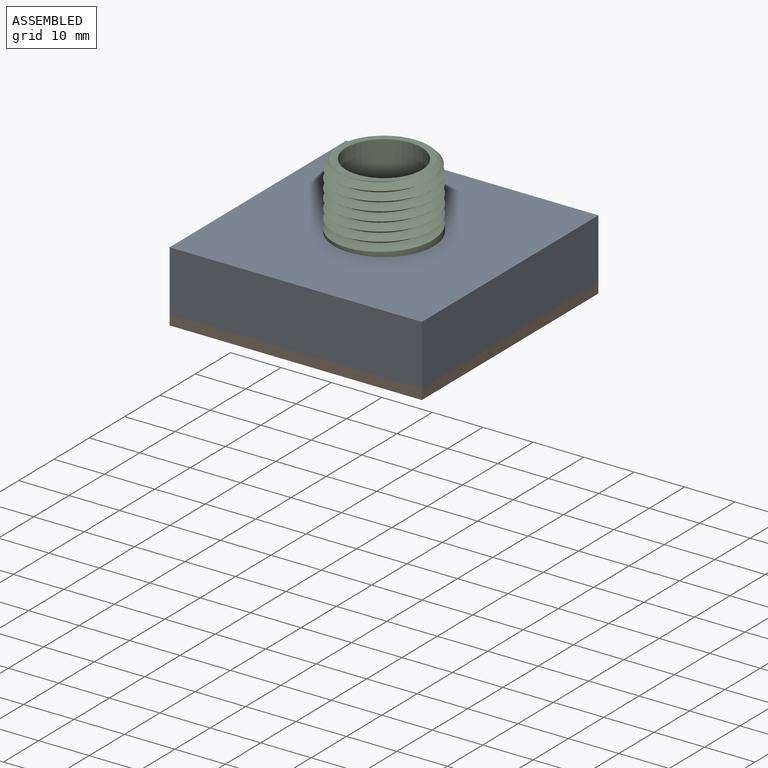
[diagram: assembled view]
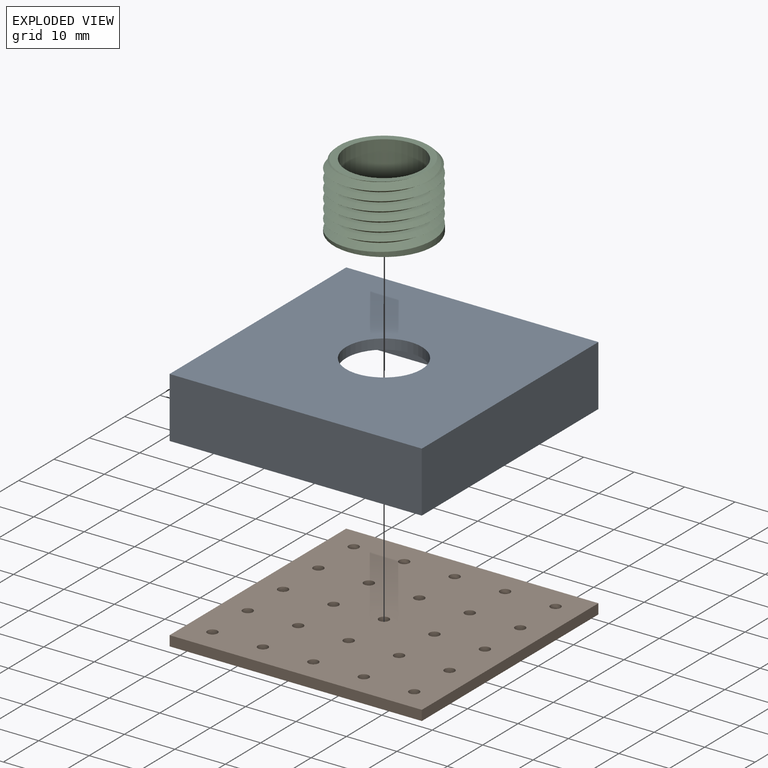
[diagram: exploded view]
GUIDED TOUR — MATED ASSEMBLY (Onshape document c1de3c4b607ddc0b9d7bfb45, AutoMate assembly c1de3c4b607ddc0b9d7bfb45_31cd6b49fef6b2e636d46be4_adedeefc18e9759a5ff64b28_default)

This assembly has 3 components, labeled P0..P2 below (a component is one placed occurrence of a part; the same part can appear more than once), held together by 4 mates. A mate is a constraint between two components; its type names the relative motion it leaves free:
  CYLINDRICAL — leaves both rotation about and translation along the listed axis free,
  FASTENED — locks the two components together rigidly (no relative motion),
  PLANAR — leaves sliding in the plane through the listed point (normal = the listed direction) and rotation about that normal free.
Axis/direction vectors are unit vectors and 'through' points are millimeter coordinates, both in the assembly's world frame.

MATES
  1. CYLINDRICAL "Cylindrical 1": P0 <-> P2, axis (0.000, 0.000, -1.000) through (3.03, 54.88, -29.25) mm
  2. FASTENED "Fastened 1": P1 <-> P0, direction (0.000, 0.000, -1.000) through (28.03, 29.88, -40.25) mm
  3. PLANAR "Planar 1": P0 <-> P1, direction (0.000, 0.000, -1.000) through (3.03, 54.88, -40.25) mm
  4. FASTENED "Fastened 2": P0 <-> P2, direction (0.000, 0.000, 1.000) through (3.03, 54.88, -28.25) mm

ASSEMBLY ORDER
  1. P2 — the base component [order verified]
  2. P0 [order verified]
  3. P1 [order verified]
Order-tag legend:
  [order verified] — this step's position reverses a verified removal order: the component was checked to insert without passing through the ones already placed.

Of the 3 components, 2 carry the full construction recipe — the FeatureScript program that regenerates the part's solid from scratch; the rest are supplied as boundary geometry only.
Each toured component is shown spotlighted twice — in the assembled view, then in the exploded view, where a leader line traces a displaced component back to its assembled socket (saturated green if recipe-attached, orange if geometry-only; every other component desaturated gray) — followed by its recipe or geometry summary and the mates that hold it.
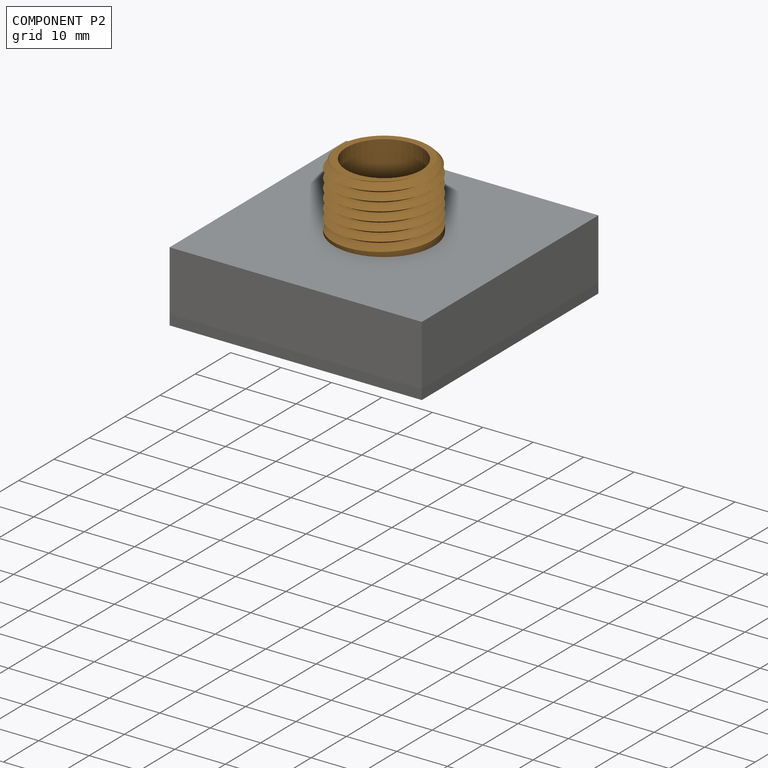
[diagram: component P2 — assembled]
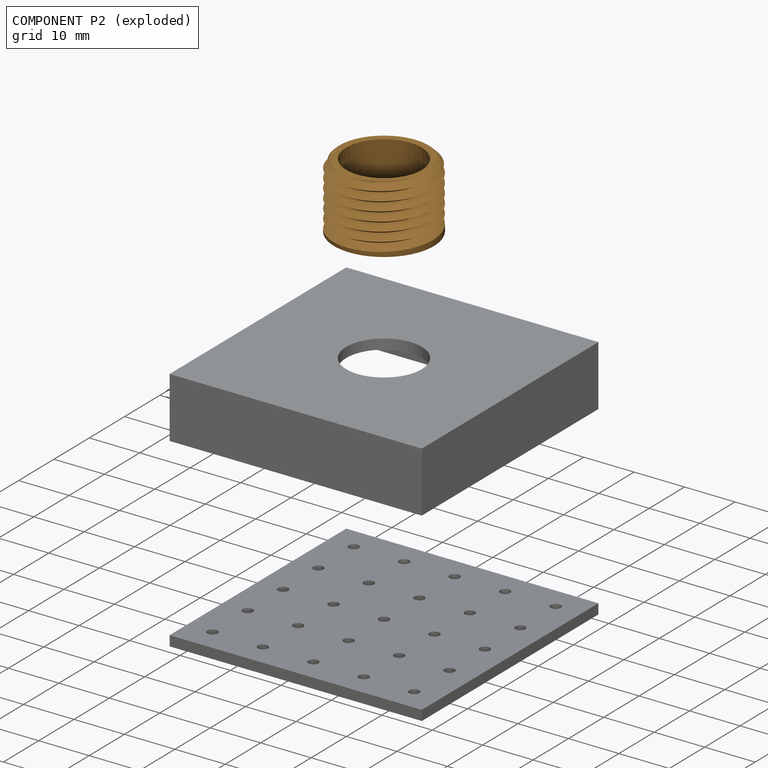
[diagram: component P2 — exploded]
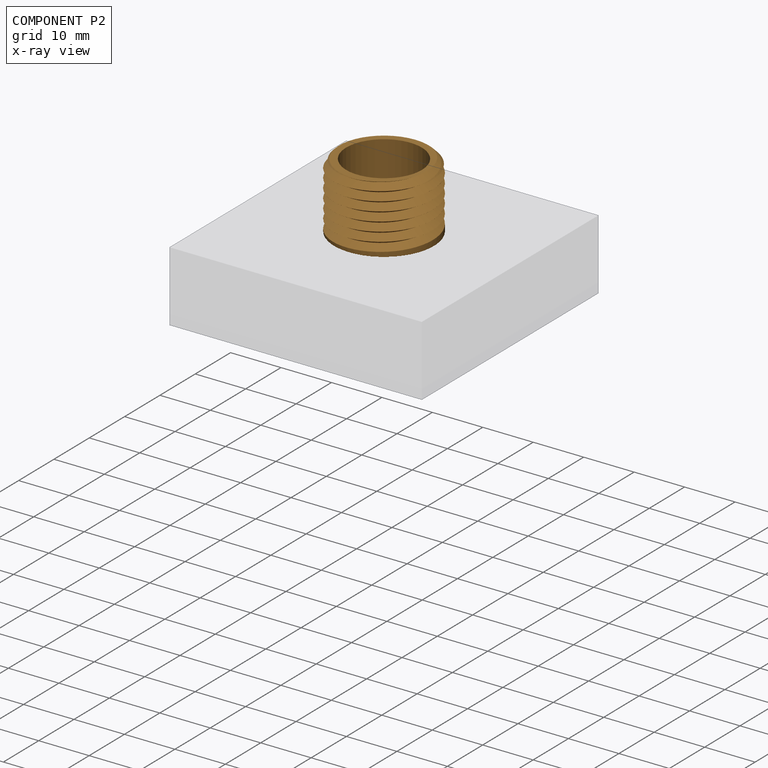
[diagram: component P2 — x-ray view]
COMPONENT P2 — geometry summary (no construction recipe available for this part):
  bounding box: 23.1 x 20.0 x 14.4 mm
  B-rep topology: 1 solid, 8 faces, 34 edges
  volume: 966 mm^3 (15% of its bounding box)
Held by: CYLINDRICAL mate "Cylindrical 1" to P0; FASTENED mate "Fastened 2" to P0.
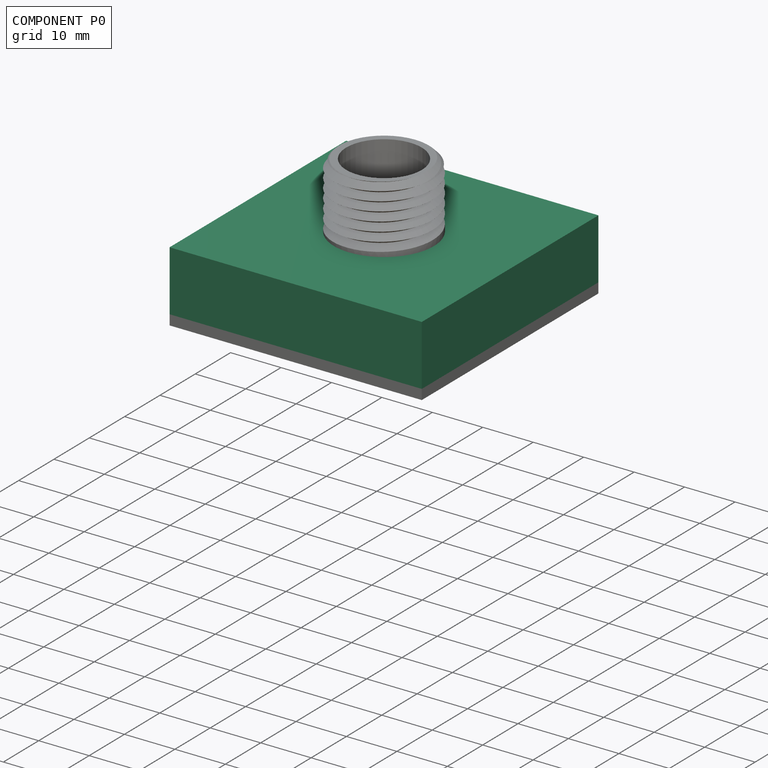
[diagram: component P0 — assembled]
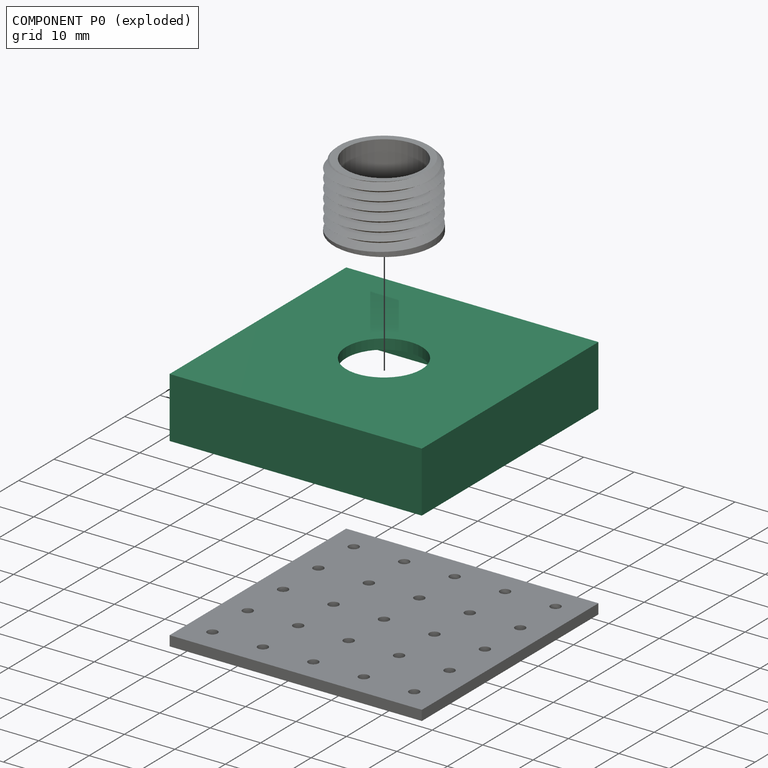
[diagram: component P0 — exploded]
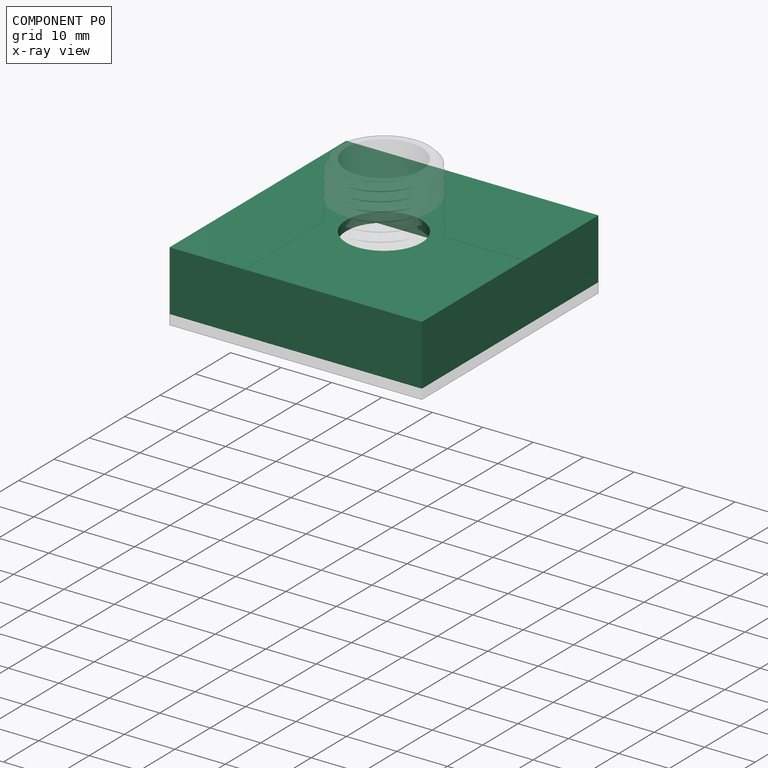
[diagram: component P0 — x-ray view]
COMPONENT P0 — recipe-attached (CADFS 00179683, mesh-verified: the recipe's output STEP matches this component's geometry to below the mesh-comparison resolution (tessellation chordal tolerance ~0.108 mm)).
Held by: CYLINDRICAL mate "Cylindrical 1" to P2; FASTENED mate "Fastened 1" to P1; PLANAR mate "Planar 1" to P1; FASTENED mate "Fastened 2" to P2.
Construction recipe (FeatureScript — the CAD program that rebuilds this solid; sketch coordinates are in the units given by the * unit suffixes, e.g. mm):

FeatureScript 1511;
import(path : "onshape/std/geometry.fs", version : "1511.0");
import(path : "onshape/std/common.fs", version : "1511.0");
const mm = millimeter;
const VERTEX = EntityType.VERTEX;
const EDGE = EntityType.EDGE;
const FACE = EntityType.FACE;
const BODY = EntityType.BODY;
function v(x, y){return vector(x, y);}
function OD(order){return orderDisambiguation(order);}
function OSD(set){return originalSetDisambiguation(set);}
function TD(topology){return topologyDisambiguation(topology);}
function TDD(query){return trueDependencyDisambiguation(query);}
function sQuery(a, b, c) {return sketchEntityQuery(a, b, c);}

annotation { "Feature Type Name" : "Feature", "Feature Type Description" : "" }
export const myFeature = defineFeature(function(context is Context, id is Id, definition is map)
    precondition{}
    {
        {
            var Q0;
            Q0=qCreatedBy(makeId("Top.planeOp"),FACE);
            var sketch = newSketch(context, id + "F0", { "sketchPlane" : qUnion([Q0])});
            skLineSegment(sketch, "E0.bottom", {"start": v(25, 25) * mm, "end": v(-25, 25) * mm});
            skLineSegment(sketch, "E0.top", {"start": v(25, -25) * mm, "end": v(-25, -25) * mm});
            skLineSegment(sketch, "E0.left", {"start": v(25, 25) * mm, "end": v(25, -25) * mm});
            skLineSegment(sketch, "E0.right", {"start": v(-25, 25) * mm, "end": v(-25, -25) * mm});
            skPoint(sketch, "E0.middle", {"position": v(0, 0) * mm});
            skCircle(sketch, "E1", {"center": v(0, 0) * mm, "radius": 7.5 * mm});
            skSolve(sketch);
        }
        {
            var Q0;
            Q0=makeQuery(id+"F0.imprint","IMPRINT",FACE,{"disambiguationData":[TD([[makeQuery(id+"F0.imprint","IMPRINT",EDGE,{"derivedFrom":sQuery(id+"F0.wireOp",EDGE,"E0.bottom")}),1.0]])]});
            var sketch = newSketch(context, id + "F1", { "sketchPlane" : qUnion([Q0])});
            skLineSegment(sketch, "E2.bottom", {"start": v(23, 23) * mm, "end": v(-23, 23) * mm});
            skLineSegment(sketch, "E2.top", {"start": v(23, -23) * mm, "end": v(-23, -23) * mm});
            skLineSegment(sketch, "E2.left", {"start": v(23, 23) * mm, "end": v(23, -23) * mm});
            skLineSegment(sketch, "E2.right", {"start": v(-23, 23) * mm, "end": v(-23, -23) * mm});
            skPoint(sketch, "E2.middle", {"position": v(0, 0) * mm});
            skSolve(sketch);
        }
        {
            var Q0;
            Q0=makeQuery(id+"F0.imprint","IMPRINT",FACE,{"disambiguationData":[TD([[makeQuery(id+"F0.imprint","IMPRINT",EDGE,{"derivedFrom":sQuery(id+"F0.wireOp",EDGE,"E0.bottom")}),1.0]])]});
            extrude(context, id + "F2", {"entities" : qUnion([Q0]), "oppositeDirection" : true, "depth" : 2 * mm});
        }
        {
            var Q0;
            Q0=makeQuery(id+"F1.imprint","IMPRINT",FACE,{"disambiguationData":[TD([[makeQuery(id+"F1.imprint","IMPRINT",EDGE,{"derivedFrom":sQuery(id+"F1.wireOp",EDGE,"E2.bottom")}),-1.0]])]});
            extrude(context, id + "F3", {"entities" : qUnion([Q0]), "operationType" : NewBodyOperationType.ADD, "depth" : 10 * mm});
        }
    });
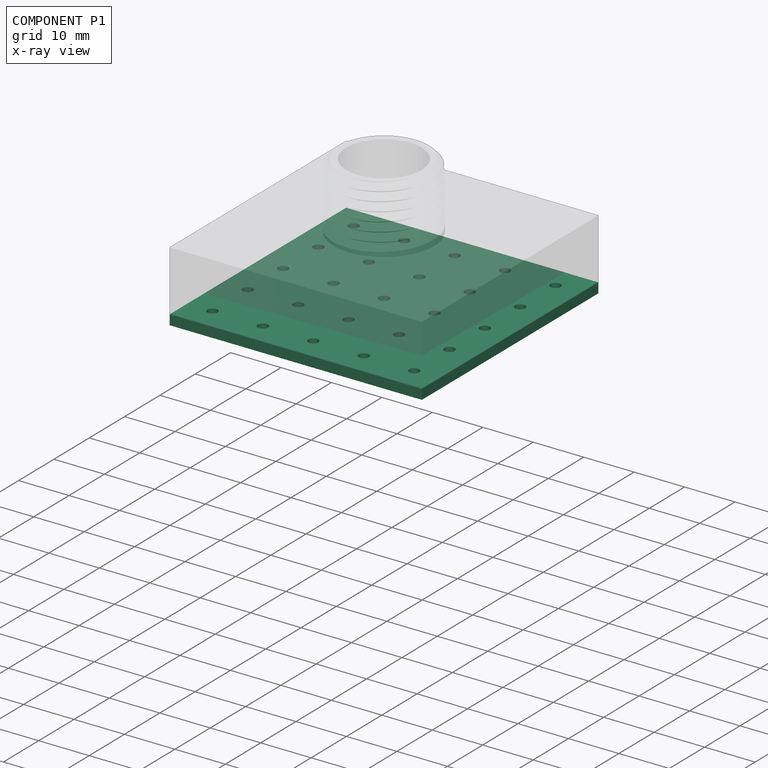
[diagram: component P1 — x-ray view]
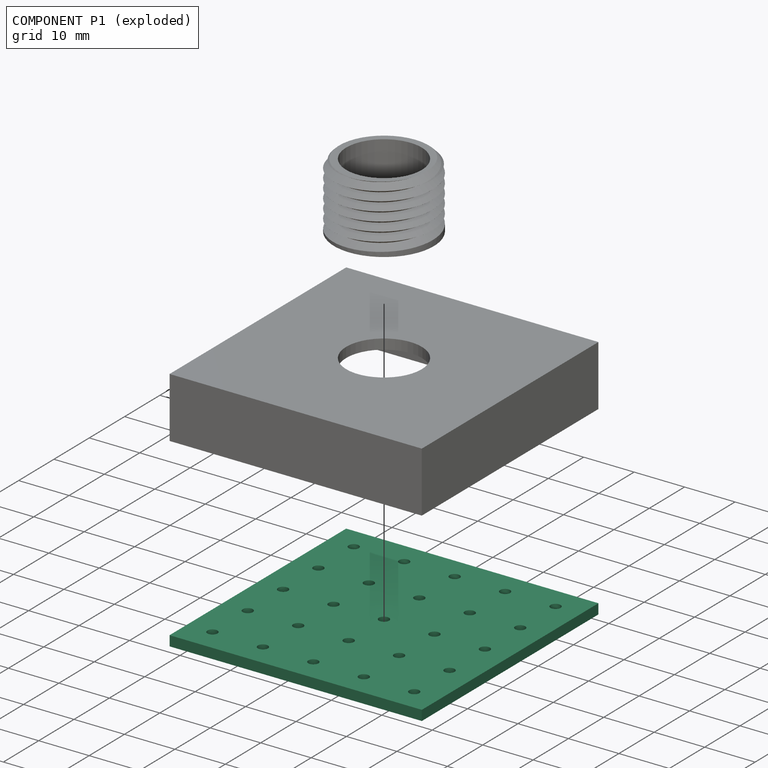
[diagram: component P1 — exploded]
COMPONENT P1 — recipe-attached (CADFS 00179682, mesh-verified: the recipe's output STEP matches this component's geometry to below the mesh-comparison resolution (tessellation chordal tolerance ~0.106 mm)).
Held by: FASTENED mate "Fastened 1" to P0; PLANAR mate "Planar 1" to P0.
Construction recipe (FeatureScript — the CAD program that rebuilds this solid; sketch coordinates are in the units given by the * unit suffixes, e.g. mm):

FeatureScript 1511;
import(path : "onshape/std/geometry.fs", version : "1511.0");
import(path : "onshape/std/common.fs", version : "1511.0");
const mm = millimeter;
const VERTEX = EntityType.VERTEX;
const EDGE = EntityType.EDGE;
const FACE = EntityType.FACE;
const BODY = EntityType.BODY;
function v(x, y){return vector(x, y);}
function OD(order){return orderDisambiguation(order);}
function OSD(set){return originalSetDisambiguation(set);}
function TD(topology){return topologyDisambiguation(topology);}
function TDD(query){return trueDependencyDisambiguation(query);}
function sQuery(a, b, c) {return sketchEntityQuery(a, b, c);}

annotation { "Feature Type Name" : "Feature", "Feature Type Description" : "" }
export const myFeature = defineFeature(function(context is Context, id is Id, definition is map)
    precondition{}
    {
        {
            var Q0;
            Q0=qCreatedBy(makeId("Top.planeOp"),FACE);
            var sketch = newSketch(context, id + "F0", { "sketchPlane" : qUnion([Q0])});
            skLineSegment(sketch, "E0.bottom", {"start": v(0, 0) * mm, "end": v(50, 0) * mm});
            skLineSegment(sketch, "E0.top", {"start": v(0, 50) * mm, "end": v(50, 50) * mm});
            skLineSegment(sketch, "E0.left", {"start": v(0, 0) * mm, "end": v(0, 50) * mm});
            skLineSegment(sketch, "E0.right", {"start": v(50, 0) * mm, "end": v(50, 50) * mm});
            skSolve(sketch);
        }
        {
            var Q0;
            Q0 = qSketchRegion(id + "F0", true);
            extrude(context, id + "F1", {"entities" : qUnion([Q0]), "depth" : 2 * mm});
        }
        {
            var Q0;
            Q0=makeQuery(id+"F1.opExtrude","CAP_FACE",FACE,{"disambiguationData":[OSD([sQuery(id+"F0.wireOp",EDGE,"E0.bottom"),sQuery(id+"F0.wireOp",EDGE,"E0.top"),sQuery(id+"F0.wireOp",EDGE,"E0.left"),sQuery(id+"F0.wireOp",EDGE,"E0.right")])],"isStart":false});
            var sketch = newSketch(context, id + "F2", { "sketchPlane" : qUnion([Q0])});
            skCircle(sketch, "E1", {"center": v(5, 5) * mm, "radius": 1 * mm});
            skLineSegment(sketch, "E2", {"start": v(0, 5) * mm, "end": v(5, 5) * mm});
            skLineSegment(sketch, "E3", {"start": v(5, 5) * mm, "end": v(5, 0) * mm});
            skLineSegment(sketch, "E4", {"start": v(50, 5) * mm, "end": v(45, 5) * mm});
            skLineSegment(sketch, "E5", {"start": v(45, 5) * mm, "end": v(45, 0) * mm});
            skCircle(sketch, "E6.0.1.0", {"center": v(5, 15) * mm, "radius": 1 * mm});
            skCircle(sketch, "E6.0.2.0", {"center": v(5, 25) * mm, "radius": 1 * mm});
            skCircle(sketch, "E6.0.3.0", {"center": v(5, 35) * mm, "radius": 1 * mm});
            skCircle(sketch, "E6.0.4.0", {"center": v(5, 45) * mm, "radius": 1 * mm});
            skCircle(sketch, "E6.1.0.0", {"center": v(15, 5) * mm, "radius": 1 * mm});
            skCircle(sketch, "E6.1.1.0", {"center": v(15, 15) * mm, "radius": 1 * mm});
            skCircle(sketch, "E6.1.2.0", {"center": v(15, 25) * mm, "radius": 1 * mm});
            skCircle(sketch, "E6.1.3.0", {"center": v(15, 35) * mm, "radius": 1 * mm});
            skCircle(sketch, "E6.1.4.0", {"center": v(15, 45) * mm, "radius": 1 * mm});
            skCircle(sketch, "E6.2.0.0", {"center": v(25, 5) * mm, "radius": 1 * mm});
            skCircle(sketch, "E6.2.1.0", {"center": v(25, 15) * mm, "radius": 1 * mm});
            skCircle(sketch, "E6.2.2.0", {"center": v(25, 25) * mm, "radius": 1 * mm});
            skCircle(sketch, "E6.2.3.0", {"center": v(25, 35) * mm, "radius": 1 * mm});
            skCircle(sketch, "E6.2.4.0", {"center": v(25, 45) * mm, "radius": 1 * mm});
            skCircle(sketch, "E6.3.0.0", {"center": v(35, 5) * mm, "radius": 1 * mm});
            skCircle(sketch, "E6.3.1.0", {"center": v(35, 15) * mm, "radius": 1 * mm});
            skCircle(sketch, "E6.3.2.0", {"center": v(35, 25) * mm, "radius": 1 * mm});
            skCircle(sketch, "E6.3.3.0", {"center": v(35, 35) * mm, "radius": 1 * mm});
            skCircle(sketch, "E6.3.4.0", {"center": v(35, 45) * mm, "radius": 1 * mm});
            skCircle(sketch, "E6.4.0.0", {"center": v(45, 5) * mm, "radius": 1 * mm});
            skCircle(sketch, "E6.4.1.0", {"center": v(45, 15) * mm, "radius": 1 * mm});
            skCircle(sketch, "E6.4.2.0", {"center": v(45, 25) * mm, "radius": 1 * mm});
            skCircle(sketch, "E6.4.3.0", {"center": v(45, 35) * mm, "radius": 1 * mm});
            skCircle(sketch, "E6.4.4.0", {"center": v(45, 45) * mm, "radius": 1 * mm});
            skLineSegment(sketch, "E6.direction1", {"start": v(5, 5) * mm, "end": v(15, 5) * mm, "construction": true});
            skLineSegment(sketch, "E6.direction2", {"start": v(5, 5) * mm, "end": v(5, 15) * mm, "construction": true});
            skSolve(sketch);
        }
        {
            var Q0;
            Q0 = qSketchRegion(id + "F2", true);
            extrude(context, id + "F3", {"entities" : qUnion([Q0]), "operationType" : NewBodyOperationType.REMOVE, "oppositeDirection" : true, "depth" : 25 * mm});
        }
    });
PROVENANCE & LICENSES
Assembly (occurrences, transforms, mates, per-part STEP geometry): AutoMate dataset, Zenodo record 7776208, CC0.
Construction recipes: CADFS (HuggingFace VladPyatov/CADFS, CC-BY-4.0, layered over the ABC dataset), FeatureScript reconstruction programs keyed by ABC model id.
Join: ABC meta listings map ABC model id -> Onshape documentId; within a shared document, parts are matched by geometric signature (bounding-box dims + volume at 0.1% relative tolerance, exact B-rep face/solid counts).
Verification: 2 of this assembly's 3 components carry a recipe attachment, and every attachment is mesh-verified: the CADFS STEP and the AutoMate member STEP were compared as meshes in their shared local frame (symmetric sampled-point-to-mesh distance); worst across the 2 attachments: below the mesh-comparison resolution (tessellation chordal tolerance ~0.108 mm) on a 72 mm part.
Renders: orthographic iso camera (az 35 / el 25); the floor grid conveys scale (grid pitch printed in each image; no ruler). In the exploded view each component is displaced by its stored offset vector: the offsets alone carry the explosion direction (mate normal/axis signs are not orientation cues and do not encode it), and separation distances are assigned per mate-chain, not proportionally to assembly-order depth.
